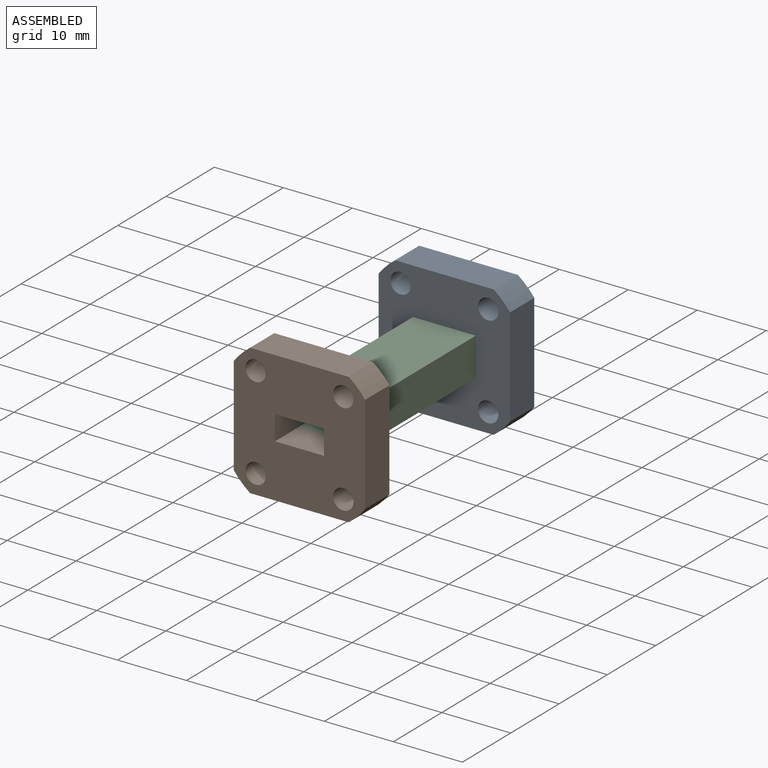
[diagram: assembled view]
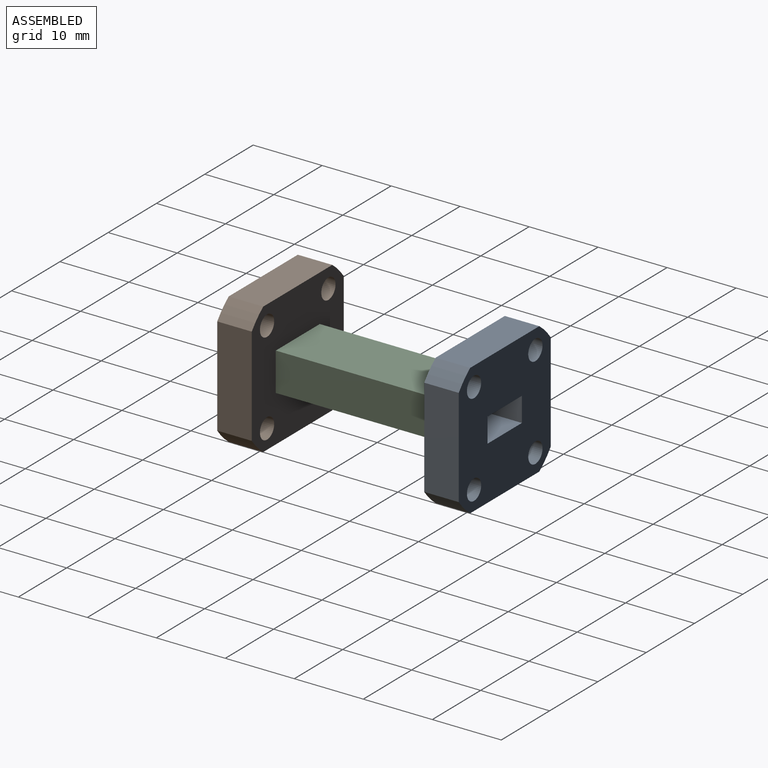
[diagram: assembled view, second angle]
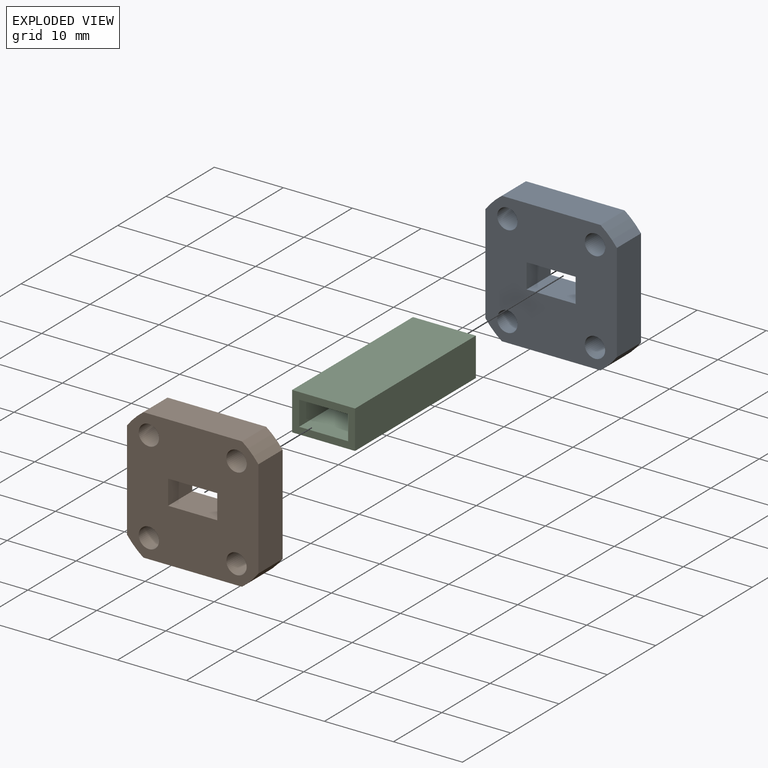
[diagram: exploded view]
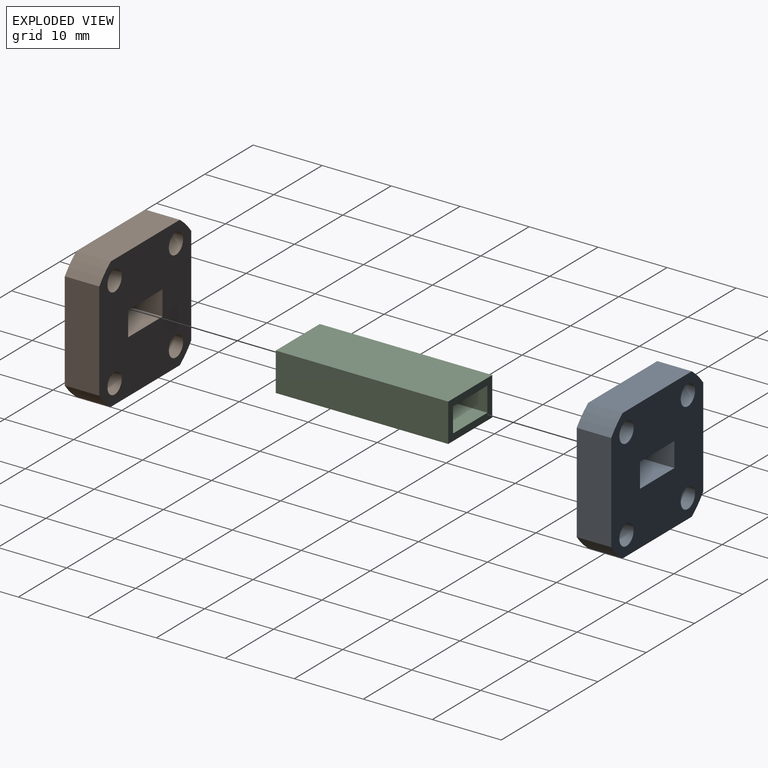
[diagram: exploded view, second angle]
ASSEMBLY  parts=3 mates=4
PART A: 18 faces, bbox 19.1x5x19.1 mm
  f0: plane 14.31x5mm, normal (0,0,-1), area 71.5mm2, adj f1,f15,f16,f17
  f1: cylinder r=11.91mm len=5mm, axis (0,-1,0), area 16.8mm2, adj f0,f2,f16,f17
  f2: plane 14.31x5mm, normal (1,0,0), area 71.5mm2, adj f1,f3,f16,f17
  f3: cylinder r=11.91mm len=5mm, axis (0,-1,0), area 16.8mm2, adj f2,f4,f16,f17
  f4: plane 14.31x5mm, normal (0,0,1), area 71.5mm2, adj f3,f5,f16,f17
  f5: cylinder r=11.91mm len=5mm, axis (0,-1,0), area 16.8mm2, adj f4,f6,f16,f17
  f6: plane 14.31x5mm, normal (-1,0,0), area 71.5mm2, adj f5,f15,f16,f17
  f7: plane 5x3.56mm, normal (-1,0,0), area 17.8mm2, adj f8,f14,f16,f17
  f8: plane 7.11x5mm, normal (0,0,1), area 35.6mm2, adj f7,f9,f16,f17
  f9: plane 5x3.56mm, normal (1,0,0), area 17.8mm2, adj f8,f14,f16,f17
  f10: cylinder r=1.47mm len=5mm, axis (0,-1,0), area 46.3mm2, adj f16,f17
  f11: cylinder r=1.47mm len=5mm, axis (0,-1,0), area 46.3mm2, adj f16,f17
  f12: cylinder r=1.47mm len=5mm, axis (0,-1,0), area 46.3mm2, adj f16,f17
  f13: cylinder r=1.47mm len=5mm, axis (0,-1,0), area 46.3mm2, adj f16,f17
  f14: plane 7.11x5mm, normal (0,0,-1), area 35.6mm2, adj f7,f9,f16,f17
  f15: cylinder r=11.91mm len=5mm, axis (0,-1,0), area 16.8mm2, adj f0,f6,f16,f17
  f16: plane 19.05x19.05mm, normal (0,1,0), area 300.1mm2, adj f0,f1,f2,f3,f4,f5,f6,f7
  f17: plane 19.05x19.05mm, normal (0,-1,0), area 300.1mm2, adj f0,f1,f2,f3,f4,f5,f6,f7
PART B: same geometry as A
PART C: 10 faces, bbox 9.1x25x5.6 mm
  f0: plane 25x9.11mm, normal (0,0,-1), area 227.8mm2, adj f1,f7,f8,f9
  f1: plane 25x5.56mm, normal (1,0,0), area 138.9mm2, adj f0,f2,f8,f9
  f2: plane 25x9.11mm, normal (0,0,1), area 227.8mm2, adj f1,f7,f8,f9
  f3: plane 25x3.56mm, normal (-1,0,0), area 88.9mm2, adj f4,f6,f8,f9
  f4: plane 25x7.11mm, normal (0,0,1), area 177.8mm2, adj f3,f5,f8,f9
  f5: plane 25x3.56mm, normal (1,0,0), area 88.9mm2, adj f4,f6,f8,f9
  f6: plane 25x7.11mm, normal (0,0,-1), area 177.8mm2, adj f3,f5,f8,f9
  f7: plane 25x5.56mm, normal (-1,0,0), area 138.9mm2, adj f0,f2,f8,f9
  f8: plane 9.11x5.56mm, normal (0,1,0), area 25.3mm2, adj f0,f1,f2,f3,f4,f5,f6,f7
  f9: plane 9.11x5.56mm, normal (0,-1,0), area 25.3mm2, adj f0,f1,f2,f3,f4,f5,f6,f7
PLACE A t=(-46.02,76.27,-52.48)mm
PLACE B t=(-46.02,46.27,-52.48)mm
PLACE C t=(-46.02,51.27,-52.48)mm
MATE planar B.f16 <-> C.f9  axis (0,1,0) through (-49.58,51.27,-50.7)mm
MATE planar C.f8 <-> A.f15  axis (0,1,0) through (-46.02,76.27,-50.7)mm
MATE planar C.f5 <-> A.f9  axis (1,0,0) through (-49.58,63.77,-52.48)mm
MATE planar C.f6 <-> A.f14  axis (0,0,-1) through (-46.02,51.27,-50.7)mm
